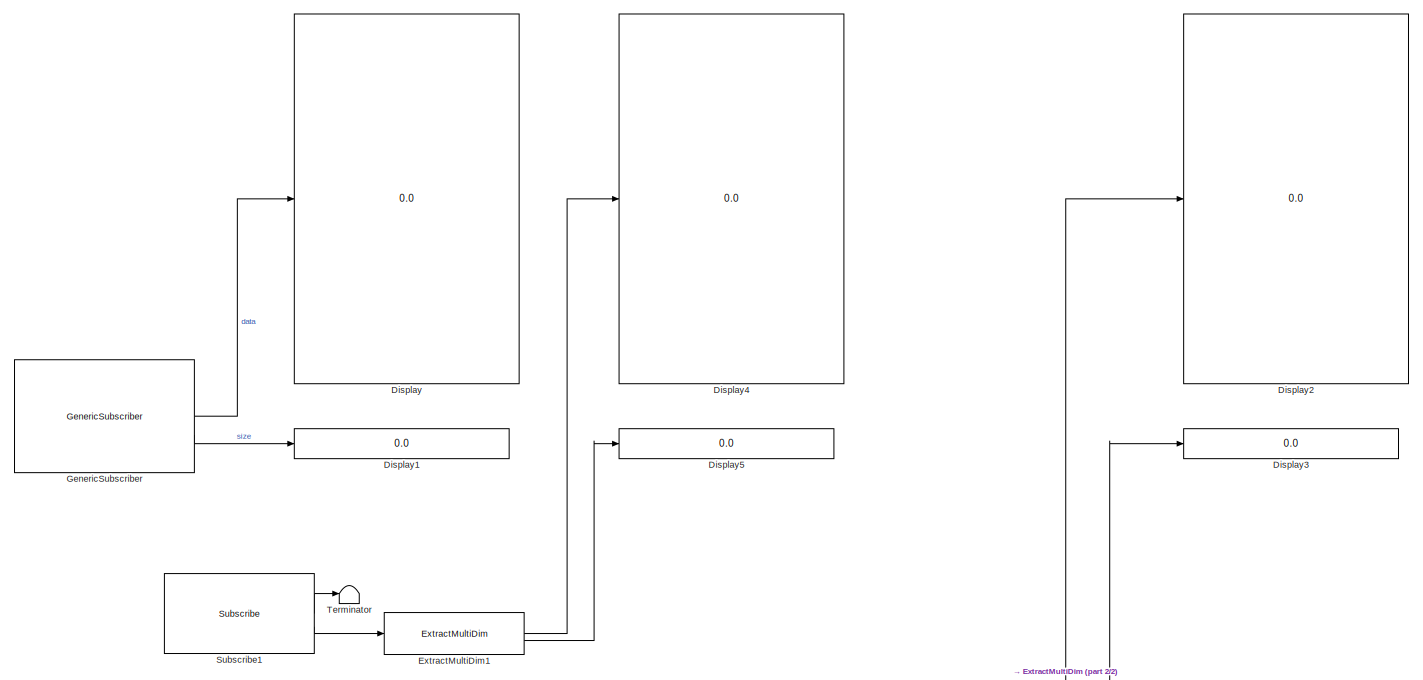
[diagram: root canvas - part 1/2, center side, full height]
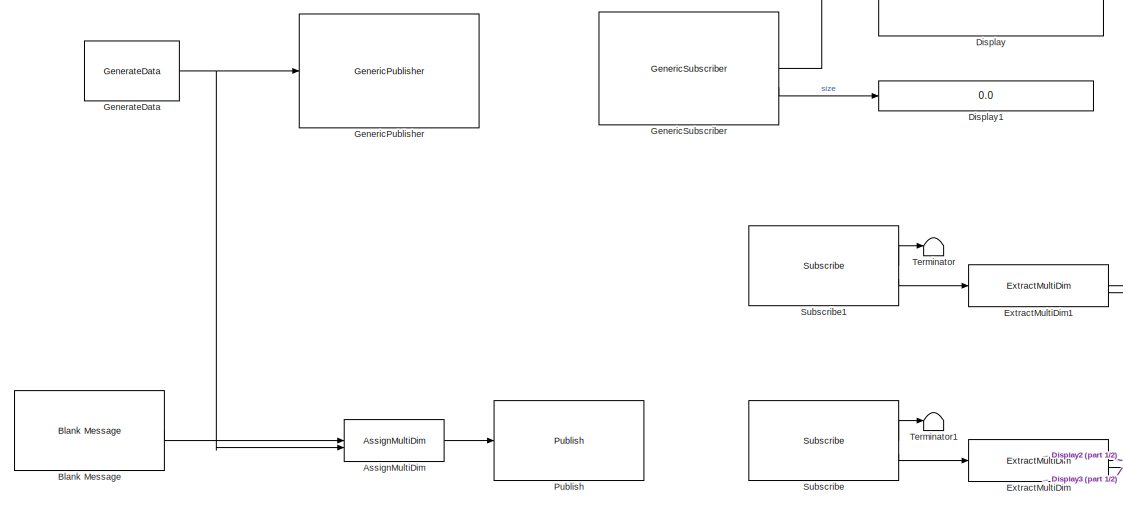
[diagram: root canvas - part 2/2, bottom left region]
MODEL slx_af4df59e5414
KIND model
CONFIG AbsTol = auto
CONFIG EnableMultiTasking = off
CONFIG FixedStep = auto
CONFIG MaxStep = auto
CONFIG MinStep = auto
CONFIG RelTol = 1e-3
CONFIG SampleTimeConstraint = Unconstrained
CONFIG SolverName = FixedStepAuto
CONFIG StartTime = 0.0
CONFIG StopTime = 10.0
BLOCK [Reference] AssignMultiDim  REF=roshelperlib/AssignMultiDim  (lib defined in slx_3328ea0e13a5)
  SourceBlock = roshelperlib/AssignMultiDim
  SourceType = SubSystem
BLOCK [Reference] Blank Message  REF=ros2lib/Blank Message  (lib defined in slx_3c1549211f48)
  SourceBlock = ros2lib/Blank Message
  SourceType = ROS2 Blank Message
BLOCK [Display] Display
  Decimation = 1
BLOCK [Display] Display1
  Decimation = 1
BLOCK [Display] Display2
  Decimation = 1
BLOCK [Display] Display3
  Decimation = 1
BLOCK [Display] Display4
  Decimation = 1
BLOCK [Display] Display5
  Decimation = 1
BLOCK [Reference] ExtractMultiDim  REF=roshelperlib/ExtractMultiDim  (lib defined in slx_3328ea0e13a5)
  SourceBlock = roshelperlib/ExtractMultiDim
BLOCK [Reference] ExtractMultiDim1  REF=roshelperlib/ExtractMultiDim  (lib defined in slx_3328ea0e13a5)
  SourceBlock = roshelperlib/ExtractMultiDim
BLOCK [Reference] GenerateData  REF=roshelperlib/GenerateData  (lib defined in slx_3328ea0e13a5)
  SourceBlock = roshelperlib/GenerateData
BLOCK [Reference] GenericPublisher  REF=roshelperlib/GenericPublisher  (lib defined in slx_3328ea0e13a5)
  SourceBlock = roshelperlib/GenericPublisher
BLOCK [Reference] GenericSubscriber  REF=roshelperlib/GenericSubscriber  (lib defined in slx_3328ea0e13a5)
  SourceBlock = roshelperlib/GenericSubscriber
BLOCK [Reference] Publish  REF=ros2lib/Publish  (lib defined in slx_3c1549211f48)
  SourceBlock = ros2lib/Publish
  SourceType = ROS2 Publish
BLOCK [Reference] Subscribe  REF=ros2lib/Subscribe  (lib defined in slx_3c1549211f48)
  SourceBlock = ros2lib/Subscribe
  SourceType = ROS2 Subscribe
BLOCK [Reference] Subscribe1  REF=ros2lib/Subscribe  (lib defined in slx_3c1549211f48)
  SourceBlock = ros2lib/Subscribe
  SourceType = ROS2 Subscribe
BLOCK [Terminator] Terminator
BLOCK [Terminator] Terminator1
LINE AssignMultiDim:1 -> Publish:1
LINE Blank Message:1 -> AssignMultiDim:1
LINE ExtractMultiDim1:1 -> Display4:1
LINE ExtractMultiDim1:2 -> Display5:1
LINE ExtractMultiDim:1 -> Display2:1
LINE ExtractMultiDim:2 -> Display3:1
NET GenerateData:1 -> AssignMultiDim:2, GenericPublisher:1
LINE GenericSubscriber:1 -> Display:1
LINE GenericSubscriber:2 -> Display1:1
LINE Subscribe1:1 -> Terminator:1
LINE Subscribe1:2 -> ExtractMultiDim1:1
LINE Subscribe:1 -> Terminator1:1
LINE Subscribe:2 -> ExtractMultiDim:1
note: NET lines group one-source signal fan-out (src -> all destinations, sorted); 1:1 wires keep LINE
